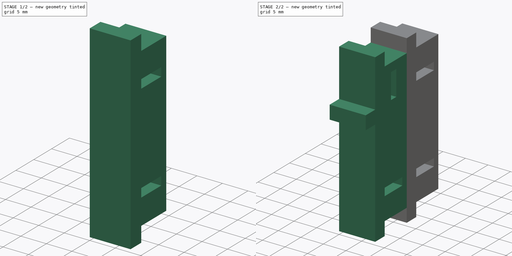
[diagram: build sequence overview — one tinted view per stage of 2, left to right]
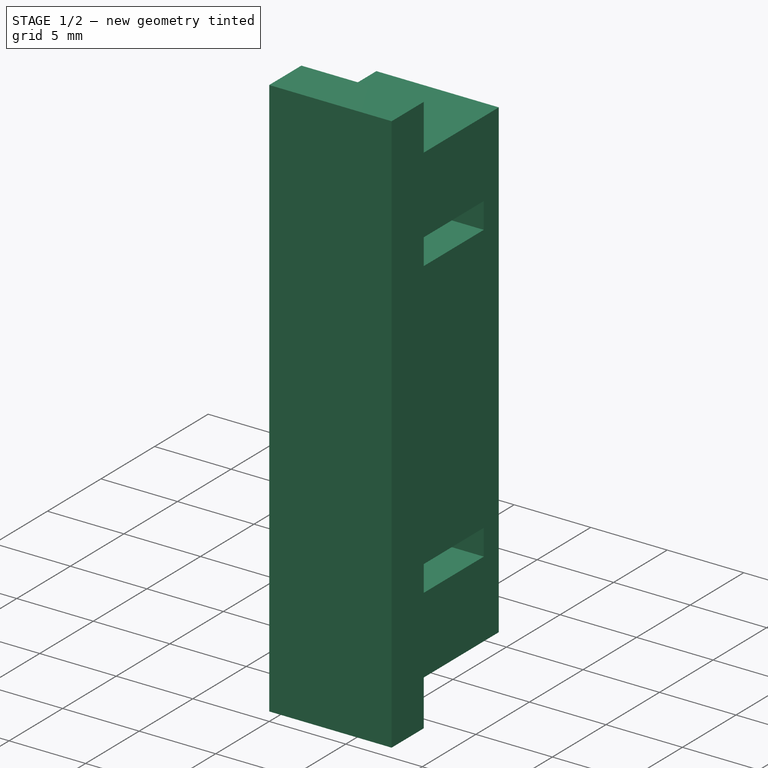
[diagram: stage 1 of 2 — iso view after this stage's code; geometry added in this stage tinted green]
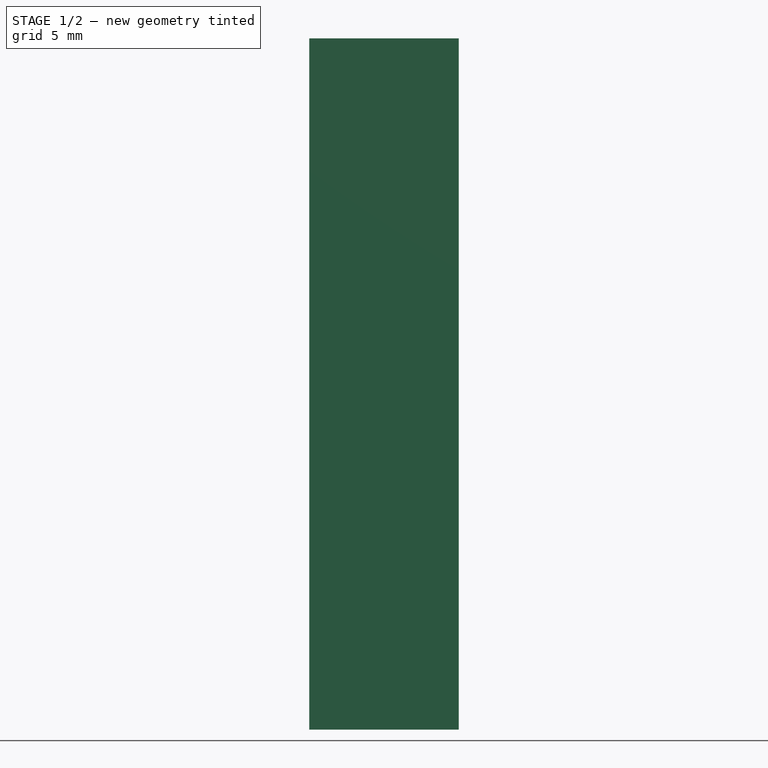
[diagram: stage 1 of 2 — front view after this stage's code; geometry added in this stage tinted green]
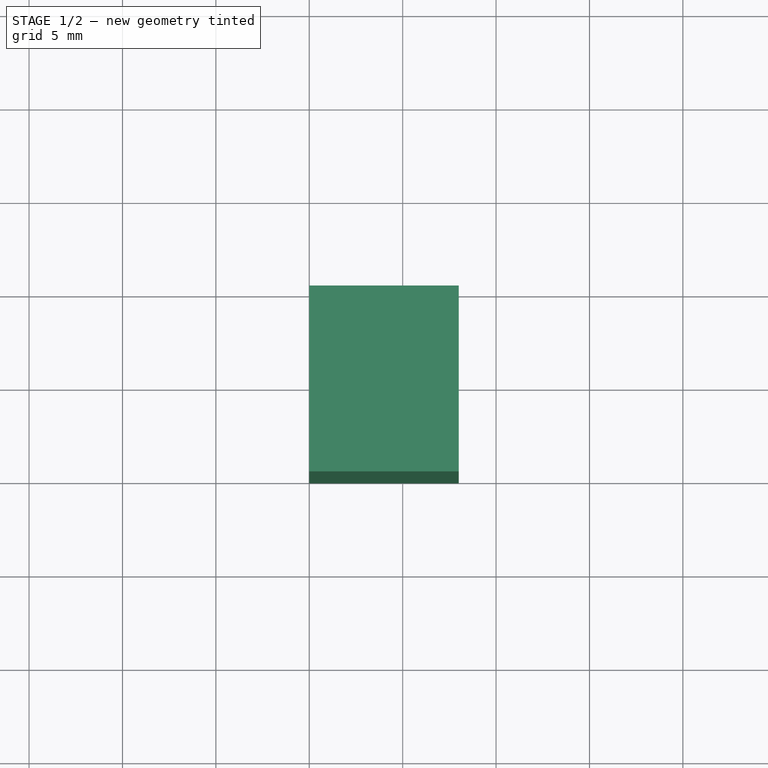
[diagram: stage 1 of 2 — top view after this stage's code; geometry added in this stage tinted green]
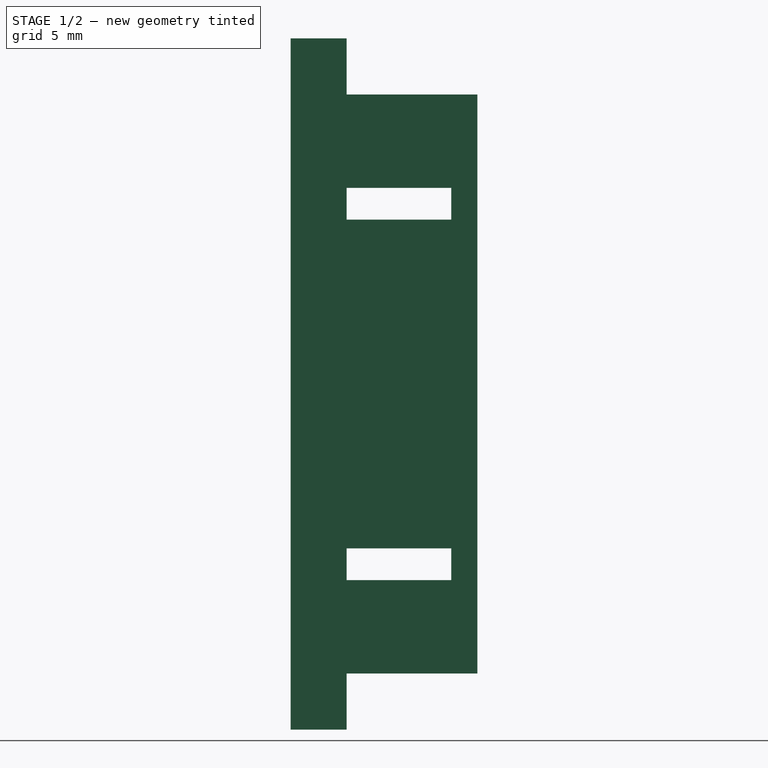
[diagram: stage 1 of 2 — right view after this stage's code; geometry added in this stage tinted green]
FCSTD DOCUMENT  (FreeCAD 0.19R24366 (Git))
Label: ri-buttoncoverholder
License: All rights reserved
LicenseURL: http://en.wikipedia.org/wiki/All_rights_reserved
objects: Sketcher::SketchObject×3, PartDesign::Pad×2, PartDesign::Body×2, Part::Part2DObjectPython×1
note: 10 computed .brp shape members not serialized (recipe doc carries the construction recipe); baked Part::Feature solids carry a one-line shape summary decoded from their .brp

FEATURE [PartDesign::Body] Body  label="BottomHolder"
  Group = -> [Sketch,Pad]
  Origin = -> Origin
  Tip = -> Pad
FEATURE [Sketcher::SketchObject] Sketch001
  FullyConstrained = true
  MapMode = 5
  Placement = pos=(0,0,0) rot=(0.57735,0.57735,0.57735;2.0944rad)
  Support = -> [YZ_Plane001]
  expr: Constraints[47] = <<Sketch>>.Constraints.nutdistance
  expr: Constraints[45] = <<Sketch>>.Constraints.nutdistance
  expr: Constraints[43] = Sketch.Constraints.nutwidth
  expr: Constraints[42] = <<Sketch>>.Constraints.nutheight
  expr: Constraints[21] = <<Sketch>>.Constraints.height
  expr: Constraints[20] = <<Sketch>>.Constraints.support
  expr: Constraints[19] = <<Sketch>>.Constraints.baseplate
  sketch-geometry (16):
    g0: LineSegment StartX=0 StartY=34 StartZ=0 EndX=3 EndY=34 EndZ=0
    g1: LineSegment StartX=3 StartY=34 StartZ=0 EndX=3 EndY=31 EndZ=0
    g2: LineSegment StartX=3 StartY=31 StartZ=0 EndX=10 EndY=31 EndZ=0
    g3: LineSegment StartX=10 StartY=31 StartZ=0 EndX=10 EndY=0 EndZ=0
    g4: LineSegment StartX=10 StartY=0 StartZ=0 EndX=3 EndY=0 EndZ=0
    g5: LineSegment StartX=3 StartY=0 StartZ=0 EndX=3 EndY=-3 EndZ=0
    g6: LineSegment StartX=3 StartY=-3 StartZ=0 EndX=0 EndY=-3 EndZ=0
    g7: LineSegment StartX=0 StartY=-3 StartZ=0 EndX=0 EndY=34 EndZ=0
    g8: LineSegment StartX=3 StartY=26 StartZ=0 EndX=8.6 EndY=26 EndZ=0
    g9: LineSegment StartX=8.6 StartY=26 StartZ=0 EndX=8.6 EndY=24.3 EndZ=0
    g10: LineSegment StartX=8.6 StartY=24.3 StartZ=0 EndX=3 EndY=24.3 EndZ=0
    g11: LineSegment StartX=3 StartY=24.3 StartZ=0 EndX=3 EndY=26 EndZ=0
    g12: LineSegment StartX=3 StartY=6.7 StartZ=0 EndX=8.6 EndY=6.7 EndZ=0
    g13: LineSegment StartX=8.6 StartY=6.7 StartZ=0 EndX=8.6 EndY=5 EndZ=0
    g14: LineSegment StartX=8.6 StartY=5 StartZ=0 EndX=3 EndY=5 EndZ=0
    g15: LineSegment StartX=3 StartY=5 StartZ=0 EndX=3 EndY=6.7 EndZ=0
  constraints (48):
    c: Coincident(g0,g1)
    c: Coincident(g1,g2)
    c: Coincident(g2,g3)
    c: Coincident(g3,g4)
    c: Coincident(g4,g5)
    c: Coincident(g5,g6)
    c: Coincident(g6,g7)
    c: Coincident(g7,g0)
    c: Horizontal(g0)
    c: Horizontal(g2)
    c: Horizontal(g4)
    c: Horizontal(g6)
    c: Vertical(g7)
    c: Vertical(g5)
    c: Vertical(g3)
    c: Vertical(g1)
    c: Equal(g0,g1)
    c: Equal(g1,g6)
    c: Equal(g6,g5)
    c: DistanceX(g0,g0) = 3
    c: DistanceX(g2,g2) = 7
    c: DistanceY(g7,g7) = 37
    c: Horizontal(g4,g-1)
    c: Vertical(g6,g-1)
    c: Coincident(g8,g9)
    c: Coincident(g9,g10)
    c: Coincident(g10,g11)
    c: Coincident(g11,g8)
    c: Horizontal(g8)
    c: Horizontal(g10)
    c: Vertical(g9)
    c: Vertical(g11)
    c: Coincident(g12,g13)
    c: Coincident(g13,g14)
    c: Coincident(g14,g15)
    c: Coincident(g15,g12)
    c: Horizontal(g12)
    c: Horizontal(g14)
    c: Vertical(g13)
    c: Vertical(g15)
    c: Equal(g13,g9)
    c: Equal(g10,g14)
    c: DistanceX(g8,g8) = 5.6
    c: DistanceY(g11,g11) = 1.7
    c: Vertical(g8,g1)
    c: DistanceY(g8,g1) = 5
    c: Vertical(g4,g14)
    c: DistanceY(g4,g14) = 5
FEATURE [PartDesign::Pad] Pad001
  Direction = (1,1,1)
  Length = 8
  Length2 = 100
  Placement = pos=(0,0,0) rot=(0.57735,0.57735,0.57735;2.0944rad)
  Profile = -> Sketch001
  Refine = true
  Type = 0
FEATURE [PartDesign::Body] Body001  label="TopHolder"
  Group = -> [Sketch001,Pad001]
  Origin = -> Origin001
  Tip = -> Pad001
FEATURE [Part::Part2DObjectPython] Shape2DView  # Draft 2D object (typed FeaturePython)
  Base = -> Pad001
  FaceNumbers = [17]
  FuseArch = false
  HiddenLines = false
  InPlace = true
  Projection = (1,2.98023e-08,-2.98023e-08)
  ProjectionMode = 0
  SegmentLength = 0.05
  Tessellation = false
  VisibleOnly = false
FEATURE [Sketcher::SketchObject] Sketch002
  FullyConstrained = false
  sketch-geometry (16):
    g0: LineSegment StartX=34 StartY=2.38419e-07 StartZ=0 EndX=34 EndY=-3 EndZ=0
    g1: LineSegment StartX=34 StartY=-3 StartZ=0 EndX=31 EndY=-3 EndZ=0
    g2: LineSegment StartX=31 StartY=-3 StartZ=0 EndX=31 EndY=-10 EndZ=0
    g3: LineSegment StartX=31 StartY=-10 StartZ=0 EndX=2.38419e-07 EndY=-10 EndZ=0
    g4: LineSegment StartX=2.38419e-07 StartY=-10 StartZ=0 EndX=2.38419e-07 EndY=-3 EndZ=0
    g5: LineSegment StartX=2.38419e-07 StartY=-3 StartZ=0 EndX=-3 EndY=-3 EndZ=0
    g6: LineSegment StartX=-3 StartY=-3 StartZ=0 EndX=-3 EndY=2.38419e-07 EndZ=0
    g7: LineSegment StartX=-3 StartY=2.38419e-07 StartZ=0 EndX=34 EndY=2.38419e-07 EndZ=0
    g8: LineSegment StartX=24.3 StartY=-3 StartZ=0 EndX=26 EndY=-3 EndZ=0
    g9: LineSegment StartX=24.3 StartY=-8.6 StartZ=0 EndX=24.3 EndY=-3 EndZ=0
    g10: LineSegment StartX=26 StartY=-8.6 StartZ=0 EndX=24.3 EndY=-8.6 EndZ=0
    g11: LineSegment StartX=26 StartY=-3 StartZ=0 EndX=26 EndY=-8.6 EndZ=0
    g12: LineSegment StartX=5 StartY=-3 StartZ=0 EndX=6.7 EndY=-3 EndZ=0
    g13: LineSegment StartX=5 StartY=-8.6 StartZ=0 EndX=5 EndY=-3 EndZ=0
    g14: LineSegment StartX=6.7 StartY=-8.6 StartZ=0 EndX=5 EndY=-8.6 EndZ=0
    g15: LineSegment StartX=6.7 StartY=-3 StartZ=0 EndX=6.7 EndY=-8.6 EndZ=0
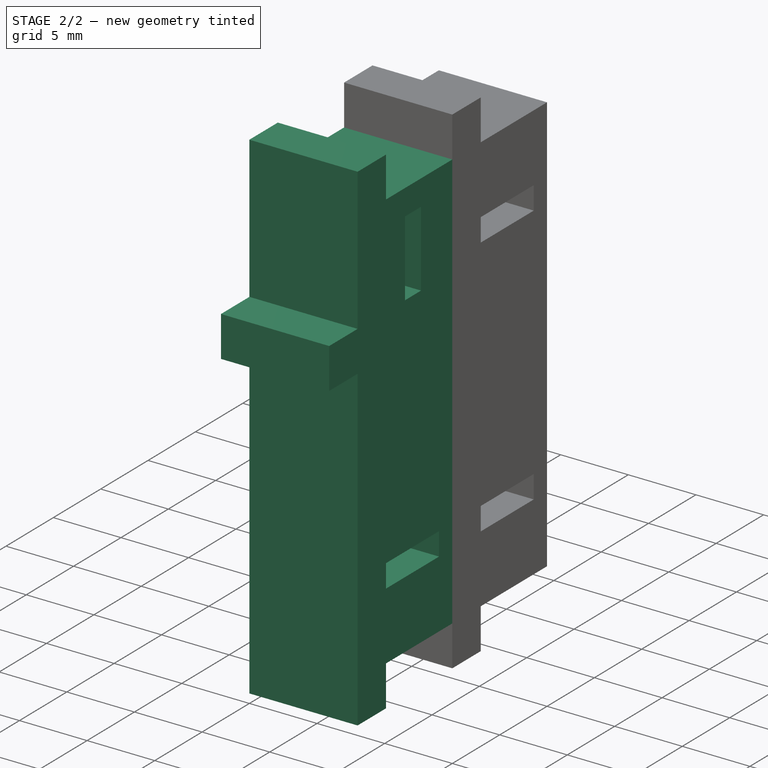
[diagram: stage 2 of 2 — iso view after this stage's code; geometry added in this stage tinted green]
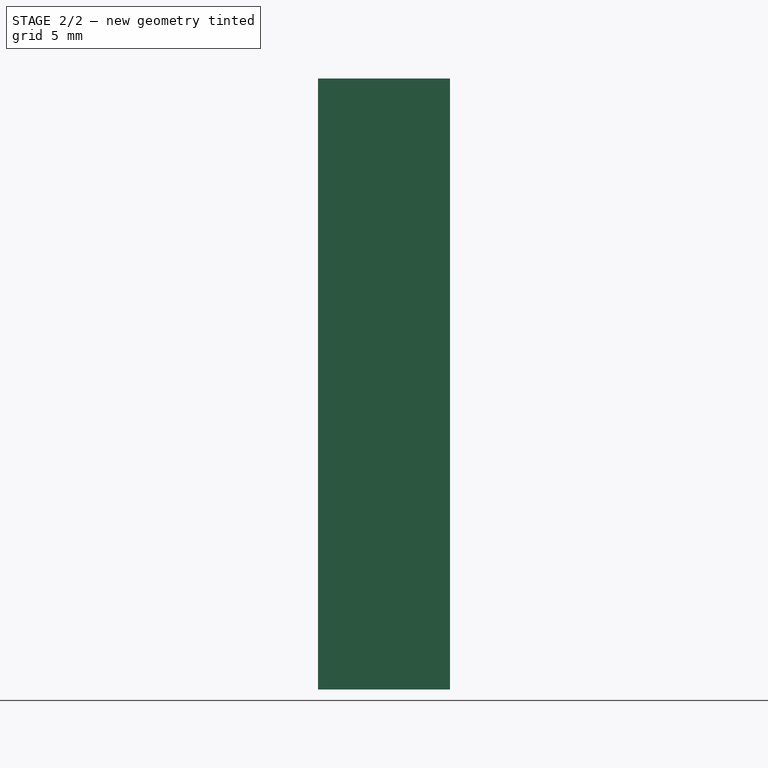
[diagram: stage 2 of 2 — front view after this stage's code; geometry added in this stage tinted green]
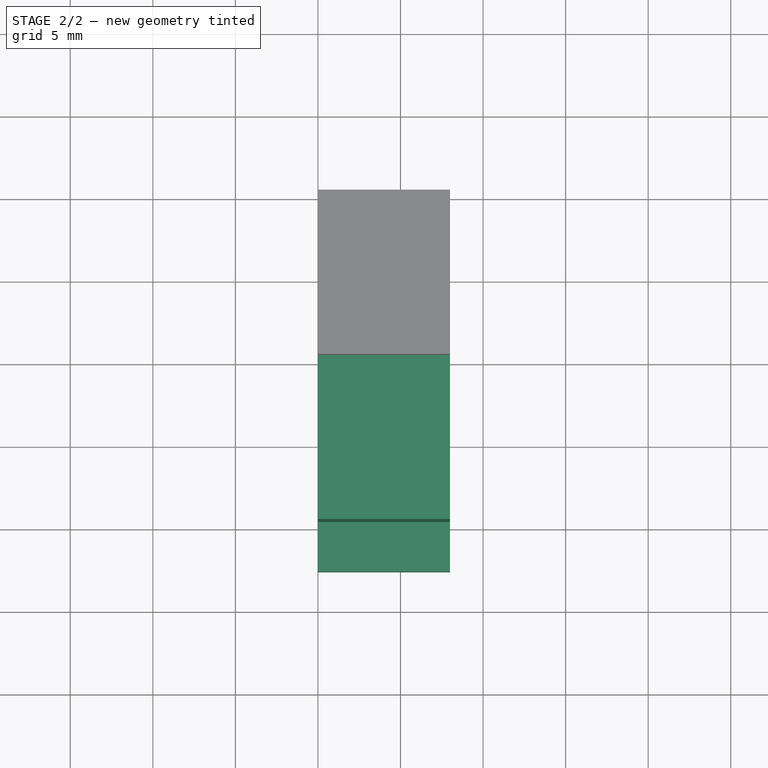
[diagram: stage 2 of 2 — top view after this stage's code; geometry added in this stage tinted green]
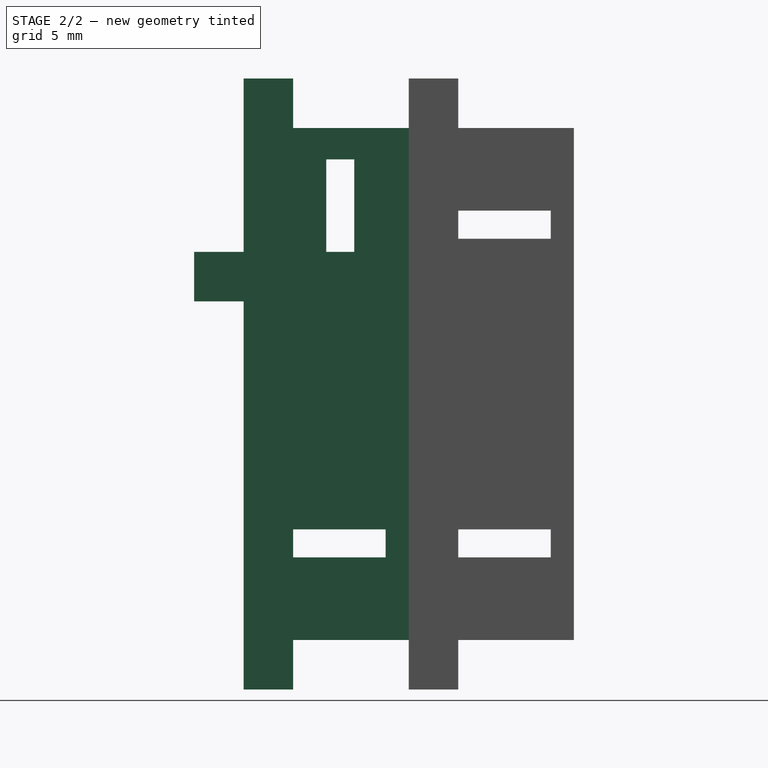
[diagram: stage 2 of 2 — right view after this stage's code; geometry added in this stage tinted green]
FEATURE [Sketcher::SketchObject] Sketch
  FullyConstrained = true
  MapMode = 5
  Placement = pos=(0,0,0) rot=(0.57735,0.57735,0.57735;2.0944rad)
  Support = -> [YZ_Plane]
  sketch-geometry (20):
    g0: LineSegment StartX=-10 StartY=34 StartZ=0 EndX=-10 EndY=23.5 EndZ=0
    g1: LineSegment StartX=-10 StartY=23.5 StartZ=0 EndX=-13 EndY=23.5 EndZ=0
    g2: LineSegment StartX=-13 StartY=23.5 StartZ=0 EndX=-13 EndY=20.5 EndZ=0
    g3: LineSegment StartX=-13 StartY=20.5 StartZ=0 EndX=-10 EndY=20.5 EndZ=0
    g4: LineSegment StartX=-10 StartY=20.5 StartZ=0 EndX=-10 EndY=-3 EndZ=0
    g5: LineSegment StartX=-10 StartY=-3 StartZ=0 EndX=-7 EndY=-3 EndZ=0
    g6: LineSegment StartX=-7 StartY=-3 StartZ=0 EndX=-7 EndY=0 EndZ=0
    g7: LineSegment StartX=-7 StartY=0 StartZ=0 EndX=0 EndY=0 EndZ=0
    g8: LineSegment StartX=0 StartY=0 StartZ=0 EndX=0 EndY=31 EndZ=0
    g9: LineSegment StartX=0 StartY=31 StartZ=0 EndX=-7 EndY=31 EndZ=0
    g10: LineSegment StartX=-7 StartY=31 StartZ=0 EndX=-7 EndY=34 EndZ=0
    g11: LineSegment StartX=-7 StartY=34 StartZ=0 EndX=-10 EndY=34 EndZ=0
    g12: LineSegment StartX=-7 StartY=6.7 StartZ=0 EndX=-1.4 EndY=6.7 EndZ=0
    g13: LineSegment StartX=-1.4 StartY=6.7 StartZ=0 EndX=-1.4 EndY=5 EndZ=0
    g14: LineSegment StartX=-1.4 StartY=5 StartZ=0 EndX=-7 EndY=5 EndZ=0
    g15: LineSegment StartX=-7 StartY=5 StartZ=0 EndX=-7 EndY=6.7 EndZ=0
    g16: LineSegment StartX=-5 StartY=29.1 StartZ=0 EndX=-3.3 EndY=29.1 EndZ=0
    g17: LineSegment StartX=-3.3 StartY=29.1 StartZ=0 EndX=-3.3 EndY=23.5 EndZ=0
    g18: LineSegment StartX=-3.3 StartY=23.5 StartZ=0 EndX=-5 EndY=23.5 EndZ=0
    g19: LineSegment StartX=-5 StartY=23.5 StartZ=0 EndX=-5 EndY=29.1 EndZ=0
  constraints (59):
    c: Vertical(g0)
    c: Coincident(g0,g1)
    c: Horizontal(g1)
    c: Coincident(g1,g2)
    c: Vertical(g2)
    c: Coincident(g2,g3)
    c: Horizontal(g3)
    c: Coincident(g3,g4)
    c: Vertical(g4)
    c: Coincident(g4,g5)
    c: Horizontal(g5)
    c: Coincident(g5,g6)
    c: Vertical(g6)
    c: Coincident(g6,g7)
    c: Horizontal(g7)
    c: Coincident(g7,g8)
    c: Vertical(g8)
    c: Coincident(g8,g9)
    c: Horizontal(g9)
    c: Coincident(g9,g10)
    c: Vertical(g10)
    c: Coincident(g10,g11)
    c: Coincident(g11,g0)
    c: Horizontal(g11)
    c: Equal(g10,g11)
    c: Equal(g11,g1)
    c: Equal(g1,g2)
    c: Equal(g2,g3)
    c: Equal(g3,g6)
    c: Equal(g6,g5)
    c: DistanceX(g11,g11) = 3  'baseplate'
    c: DistanceX(g9,g9) = 7  'support'
    c: DistanceY(g0,g0) = 10.5
    c: DistanceY(g4,g0) = 37  'height'
    c: Coincident(g7,g-1)
    c: Coincident(g12,g13)
    c: Coincident(g13,g14)
    c: Coincident(g14,g15)
    c: Coincident(g15,g12)
    c: Horizontal(g12)
    c: Horizontal(g14)
    c: Vertical(g13)
    c: Vertical(g15)
    c: Coincident(g16,g17)
    c: Coincident(g17,g18)
    c: Coincident(g18,g19)
    c: Coincident(g19,g16)
    c: Horizontal(g16)
    c: Horizontal(g18)
    c: Vertical(g17)
    c: Vertical(g19)
    c: Equal(g18,g13)
    c: Equal(g19,g12)
    c: Horizontal(g18,g0)
    c: DistanceX(g0,g18) = 5
    c: DistanceX(g16,g16) = 1.7  'nutwidth'
    c: DistanceY(g17,g17) = 5.6  'nutheight'
    c: Vertical(g14,g6)
    c: DistanceY(g6,g14) = 5  'nutdistance'
FEATURE [PartDesign::Pad] Pad
  Direction = (1,1,1)
  Length = 8
  Length2 = 100
  Placement = pos=(0,0,0) rot=(0.57735,0.57735,0.57735;2.0944rad)
  Profile = -> Sketch
  Refine = true
  Type = 0
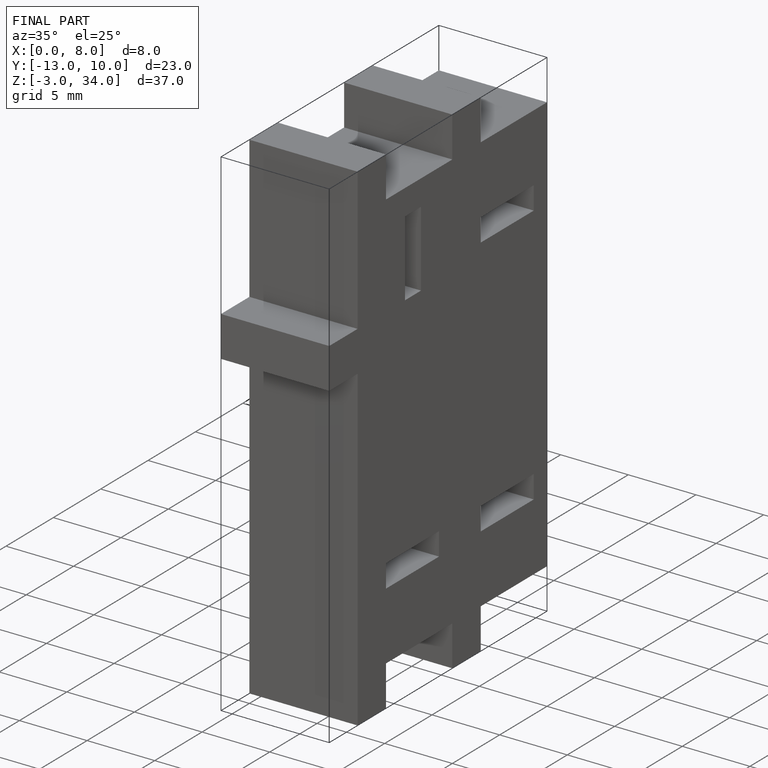
[diagram: finished part — iso view with bounding-box wireframe]
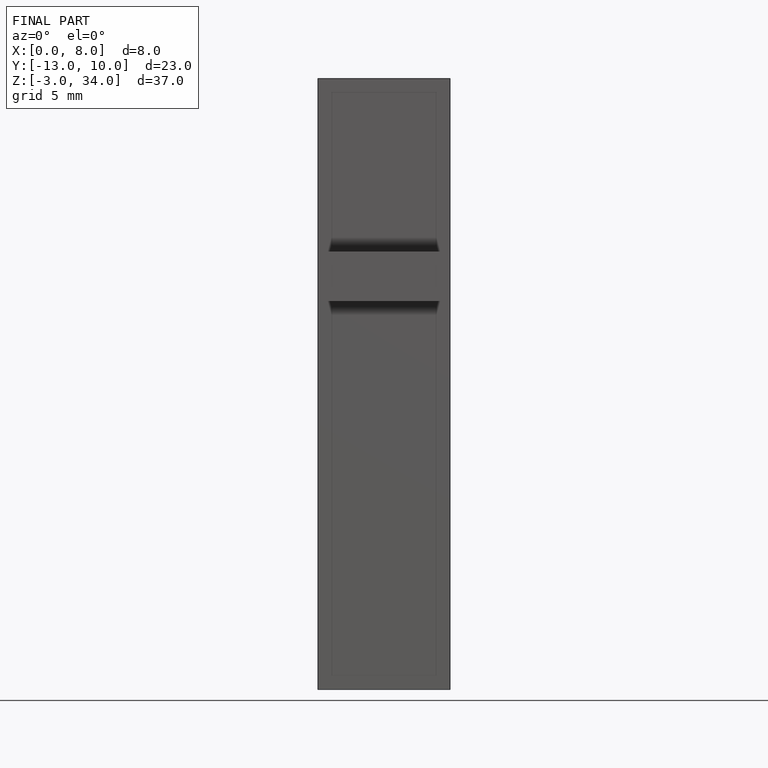
[diagram: finished part — front view with bounding-box wireframe]
